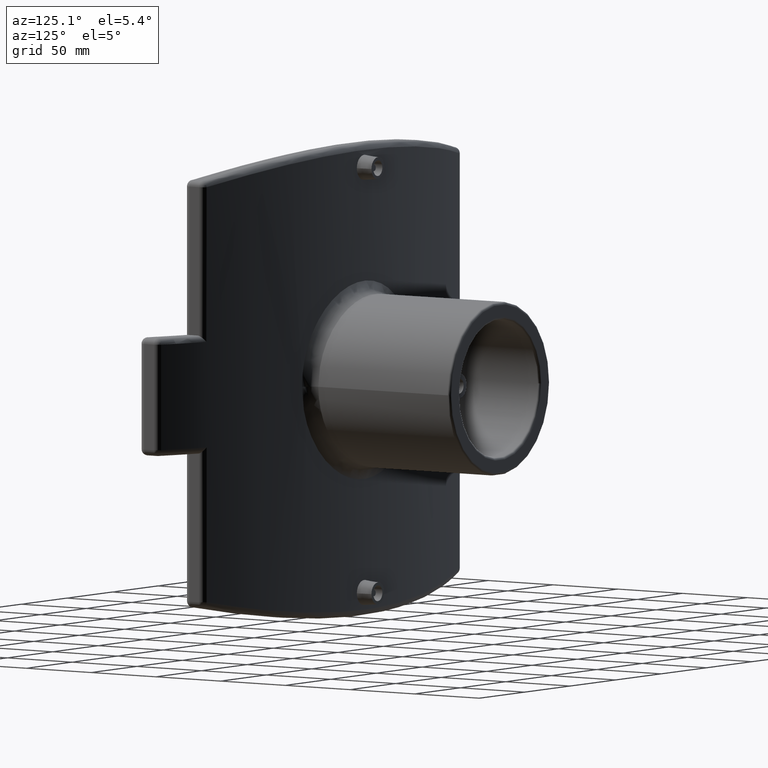
[diagram: clean part render]
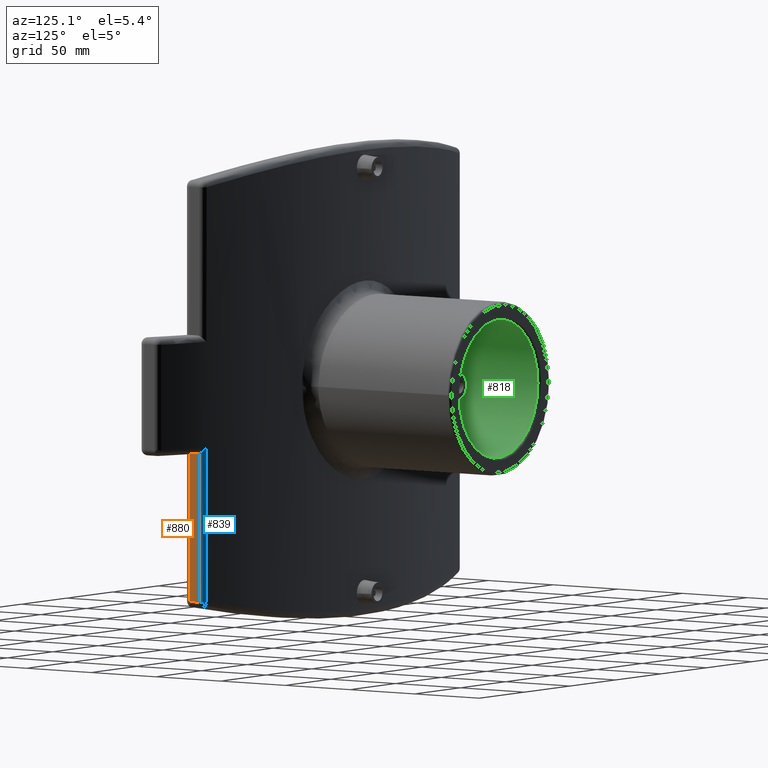
[diagram: same view with three faces highlighted in distinct colors, each labeled with its STEP entity id]
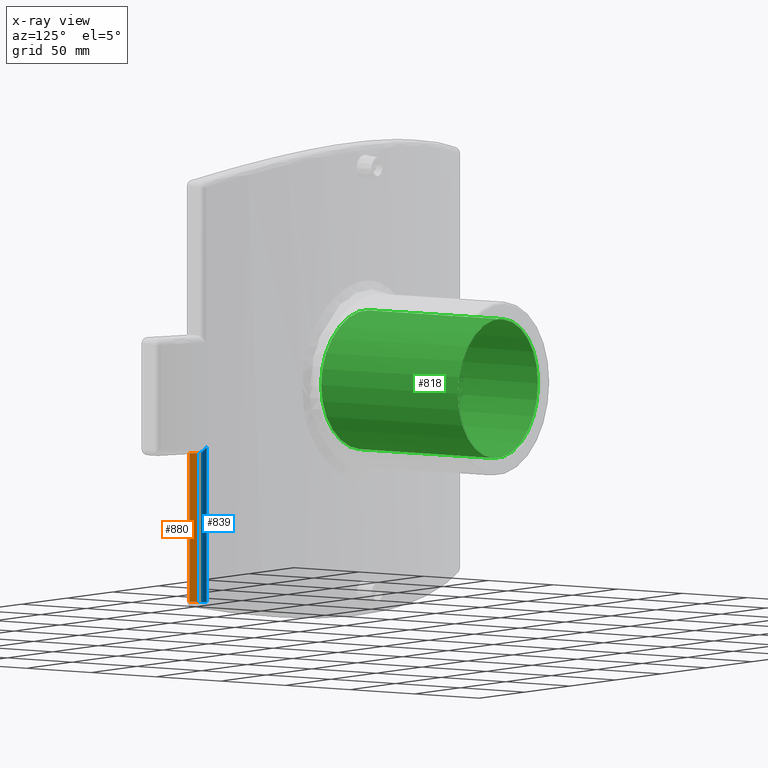
[diagram: x-ray of the same camera — body ghosted, the three highlighted faces saturated]
A machine part, auxiliary view with three faces highlighted in distinct colors.
The next image is the same camera in x-ray (body ghosted, the three faces saturated) — at least one of them is partly hidden behind the body in this view.
Their STEP definitions:

[orange] entity #880 — the highlighted planar face has unit normal (1, 0, 0).
#33=LINE('',#1778,#63);
#54=LINE('',#2195,#84);
#55=LINE('',#2198,#85);
#58=LINE('',#2203,#88);
#63=VECTOR('',#1104,94.4951362688339);
#84=VECTOR('',#1259,94.2576130740143);
#85=VECTOR('',#1264,7.43788437451492);
#88=VECTOR('',#1271,5.99159146866569);
#114=B_SPLINE_CURVE_WITH_KNOTS('',3,(#2186,#2187,#2188,#2189,#2190,#2191),
 .UNSPECIFIED.,.F.,.F.,(4,2,4),(-0.611718196703903,-0.531256665760459,-0.473772795786302),
 .UNSPECIFIED.);
#154=PLANE('',#1006);
#243=FACE_OUTER_BOUND('',#332,.T.);
#332=EDGE_LOOP('',(#800,#801,#802,#803,#804));
#429=VERTEX_POINT('',#1773);
#430=VERTEX_POINT('',#1777);
#431=VERTEX_POINT('',#1792);
#466=VERTEX_POINT('',#2184);
#467=VERTEX_POINT('',#2194);
#503=EDGE_CURVE('',#430,#429,#33,.T.);
#574=EDGE_CURVE('',#466,#430,#114,.T.);
#576=EDGE_CURVE('',#431,#467,#54,.T.);
#578=EDGE_CURVE('',#429,#431,#55,.T.);
#581=EDGE_CURVE('',#466,#467,#58,.T.);
#800=ORIENTED_EDGE('',*,*,#503,.F.);
#801=ORIENTED_EDGE('',*,*,#574,.F.);
#802=ORIENTED_EDGE('',*,*,#581,.T.);
#803=ORIENTED_EDGE('',*,*,#576,.F.);
#804=ORIENTED_EDGE('',*,*,#578,.F.);
#880=ADVANCED_FACE('',(#243),#154,.T.);
#1006=AXIS2_PLACEMENT_3D('',#2210,#1284,#1285);
#1104=DIRECTION('',(0.,0.,-1.));
#1259=DIRECTION('',(0.,0.,1.));
#1264=DIRECTION('',(0.,-1.,0.));
#1271=DIRECTION('',(0.,-1.,0.));
#1284=DIRECTION('center_axis',(1.,0.,0.));
#1285=DIRECTION('ref_axis',(0.,1.,0.));
#1773=CARTESIAN_POINT('',(141.750000000004,387.228533943457,-131.757613074014));
#1777=CARTESIAN_POINT('',(141.750000000004,387.228533943457,-37.2624768051804));
#1778=CARTESIAN_POINT('',(141.750000000004,387.228533943457,0.));
#1792=CARTESIAN_POINT('',(141.750000000004,379.790649568942,-131.757613074014));
#2184=CARTESIAN_POINT('',(141.750000000004,385.782241037608,-37.5));
#2186=CARTESIAN_POINT('Ctrl Pts',(141.750000000004,385.782241037608,-37.5));
#2187=CARTESIAN_POINT('Ctrl Pts',(141.750000000004,386.050446140753,-37.5));
#2188=CARTESIAN_POINT('Ctrl Pts',(141.750000000004,386.343547032284,-37.4746962943939));
#2189=CARTESIAN_POINT('Ctrl Pts',(141.750000000004,386.836318140981,-37.3806551270212));
#2190=CARTESIAN_POINT('Ctrl Pts',(141.750000000004,387.038891925898,-37.3267466109439));
#2191=CARTESIAN_POINT('Ctrl Pts',(141.750000000004,387.228533943457,-37.2624768051804));
#2194=CARTESIAN_POINT('',(141.750000000004,379.790649568942,-37.5));
#2195=CARTESIAN_POINT('',(141.750000000004,379.790649568942,0.));
#2198=CARTESIAN_POINT('',(141.750000000004,0.,-131.757613074014));
#2203=CARTESIAN_POINT('',(141.750000000004,374.772601595261,-37.5));
#2210=CARTESIAN_POINT('Origin',(141.750000000004,374.041358007372,0.));

[blue] entity #839 — the highlighted cylindrical surface (edge-blend (fillet) strip) has radius 4 mm, axis along (0, 0, 1).
#30=LINE('',#1563,#60);
#33=LINE('',#1778,#63);
#60=VECTOR('',#1035,98.2576130740143);
#63=VECTOR('',#1104,94.4951362688339);
#103=B_SPLINE_CURVE_WITH_KNOTS('',3,(#1779,#1780,#1781,#1782,#1783,#1784,
#1785,#1786,#1787,#1788,#1789,#1790),.UNSPECIFIED.,.F.,.F.,(4,2,2,2,2,4),
(-0.00126452852160072,0.,0.17925656040126,0.350104493650061,0.523411316612755,
0.624178032528681),.UNSPECIFIED.);
#124=CYLINDRICAL_SURFACE('',#928,4.);
#202=FACE_OUTER_BOUND('',#289,.T.);
#289=EDGE_LOOP('',(#638,#639,#640,#641));
#354=CIRCLE('',#926,4.);
#406=VERTEX_POINT('',#1560);
#407=VERTEX_POINT('',#1562);
#429=VERTEX_POINT('',#1773);
#430=VERTEX_POINT('',#1777);
#478=EDGE_CURVE('',#407,#406,#30,.T.);
#501=EDGE_CURVE('',#429,#407,#354,.F.);
#503=EDGE_CURVE('',#430,#429,#33,.T.);
#504=EDGE_CURVE('',#406,#430,#103,.T.);
#638=ORIENTED_EDGE('',*,*,#503,.T.);
#639=ORIENTED_EDGE('',*,*,#501,.T.);
#640=ORIENTED_EDGE('',*,*,#478,.T.);
#641=ORIENTED_EDGE('',*,*,#504,.T.);
#839=ADVANCED_FACE('',(#202),#124,.T.);
#926=AXIS2_PLACEMENT_3D('',#1774,#1098,#1099);
#928=AXIS2_PLACEMENT_3D('',#1776,#1102,#1103);
#1035=DIRECTION('',(0.,0.,1.));
#1098=DIRECTION('center_axis',(0.,4.71351280314039E-15,-1.));
#1099=DIRECTION('ref_axis',(1.,0.,0.));
#1102=DIRECTION('center_axis',(0.,0.,1.));
#1103=DIRECTION('ref_axis',(0.81705512385995,0.57655955856633,0.));
#1104=DIRECTION('',(0.,0.,-1.));
#1560=CARTESIAN_POINT('',(139.09063260341,390.997181475753,-33.5));
#1562=CARTESIAN_POINT('',(139.09063260341,390.997181475753,-131.757613074014));
#1563=CARTESIAN_POINT('',(139.09063260341,390.997181475753,0.));
#1773=CARTESIAN_POINT('',(141.750000000004,387.228533943457,-131.757613074014));
#1774=CARTESIAN_POINT('Origin',(137.750000000004,387.228533943457,-131.757613074014));
#1776=CARTESIAN_POINT('Origin',(137.750000000004,387.228533943457,0.));
#1777=CARTESIAN_POINT('',(141.750000000004,387.228533943457,-37.2624768051804));
#1778=CARTESIAN_POINT('',(141.750000000004,387.228533943457,0.));
#1779=CARTESIAN_POINT('Ctrl Pts',(139.09063260341,390.997181475753,-33.5));
#1780=CARTESIAN_POINT('Ctrl Pts',(139.093447529066,390.996180113573,-33.5029732967895));
#1781=CARTESIAN_POINT('Ctrl Pts',(139.096261333653,390.995175597248,-33.5059465944272));
#1782=CARTESIAN_POINT('Ctrl Pts',(139.497792593818,390.851323223342,-33.930406856836));
#1783=CARTESIAN_POINT('Ctrl Pts',(139.876345016678,390.64424868553,-34.3544120095419));
#1784=CARTESIAN_POINT('Ctrl Pts',(140.54357908225,390.121128128939,-35.1551058650056));
#1785=CARTESIAN_POINT('Ctrl Pts',(140.83982233076,389.807296336689,-35.5381256281206));
#1786=CARTESIAN_POINT('Ctrl Pts',(141.333533382297,389.061841850755,-36.2519018400816));
#1787=CARTESIAN_POINT('Ctrl Pts',(141.532757094742,388.623340530125,-36.5866461345682));
#1788=CARTESIAN_POINT('Ctrl Pts',(141.712969625684,387.845777665916,-37.0186394728309));
#1789=CARTESIAN_POINT('Ctrl Pts',(141.750000000004,387.542834550566,-37.1559601205853));
#1790=CARTESIAN_POINT('Ctrl Pts',(141.750000000004,387.228533943457,-37.2624768051804));

[green] entity #818 — the highlighted cylindrical surface (bore or boss wall) has radius 44 mm, axis along (0, -1, 0).
#94=B_SPLINE_CURVE_WITH_KNOTS('',3,(#1299,#1300,#1301,#1302,#1303,#1304,
#1305,#1306,#1307,#1308,#1309,#1310,#1311,#1312,#1313,#1314,#1315,#1316,
#1317,#1318,#1319,#1320,#1321,#1322,#1323,#1324,#1325,#1326,#1327,#1328,
#1329,#1330,#1331,#1332,#1333,#1334,#1335,#1336,#1337,#1338,#1339,#1340,
#1341,#1342,#1343,#1344,#1345,#1346,#1347,#1348,#1349,#1350,#1351,#1352,
#1353,#1354,#1355,#1356,#1357,#1358,#1359,#1360,#1361,#1362,#1363,#1364),
 .UNSPECIFIED.,.T.,.F.,(4,2,2,2,2,2,2,2,2,2,2,2,2,2,2,2,2,2,2,2,2,2,2,2,
2,2,2,2,2,2,2,2,4),(0.,0.829381838852933,1.65876367770587,2.4881455165588,
3.31752735541173,4.14690562286717,4.9762838903226,5.80566215777804,6.63504042523348,
7.46441869268891,8.29379696014435,9.12317522759978,9.95255349505522,10.7819353339082,
11.6113171727611,12.440699011614,13.270080850467,14.0994626893199,14.9288445281728,
15.7582263670258,16.5876082058787,17.4169864733341,18.2463647407896,19.075743008245,
19.9051212757004,20.7344995431559,21.5638778106113,22.3932560780667,23.2226343455222,
24.0520161843751,24.881398023228,25.710779862081,26.5401617009339),
 .UNSPECIFIED.);
#115=CYLINDRICAL_SURFACE('',#889,44.);
#158=FACE_BOUND('',#250,.T.);
#181=FACE_OUTER_BOUND('',#249,.T.);
#249=EDGE_LOOP('',(#586));
#250=EDGE_LOOP('',(#587));
#334=CIRCLE('',#885,44.);
#397=VERTEX_POINT('',#1290);
#400=VERTEX_POINT('',#1298);
#468=EDGE_CURVE('',#397,#397,#334,.T.);
#471=EDGE_CURVE('',#400,#400,#94,.T.);
#586=ORIENTED_EDGE('',*,*,#471,.F.);
#587=ORIENTED_EDGE('',*,*,#468,.F.);
#818=ADVANCED_FACE('',(#181,#158),#115,.F.);
#885=AXIS2_PLACEMENT_3D('',#1291,#1012,#1013);
#889=AXIS2_PLACEMENT_3D('',#1297,#1020,#1021);
#1012=DIRECTION('center_axis',(0.,-1.,0.));
#1013=DIRECTION('ref_axis',(1.,0.,0.));
#1020=DIRECTION('center_axis',(0.,-1.,0.));
#1021=DIRECTION('ref_axis',(1.,0.,0.));
#1290=CARTESIAN_POINT('',(-44.,518.4,-5.38844591624836E-15));
#1291=CARTESIAN_POINT('Origin',(0.,518.4,0.));
#1297=CARTESIAN_POINT('Origin',(0.,520.,0.));
#1298=CARTESIAN_POINT('',(44.,412.660877719224,0.));
#1299=CARTESIAN_POINT('Ctrl Pts',(44.,412.660877719224,0.));
#1300=CARTESIAN_POINT('Ctrl Pts',(44.,412.660877719224,-2.76460612950978));
#1301=CARTESIAN_POINT('Ctrl Pts',(43.7352436571786,412.689401844526,-5.622974104845));
#1302=CARTESIAN_POINT('Ctrl Pts',(42.6207317438865,412.805992153848,-11.3076346417609));
#1303=CARTESIAN_POINT('Ctrl Pts',(41.771221834736,412.893979344287,-14.133976983814));
#1304=CARTESIAN_POINT('Ctrl Pts',(39.525397380763,413.115015585023,-19.5537018339699));
#1305=CARTESIAN_POINT('Ctrl Pts',(38.12729507589,413.24803477934,-22.151440277066));
#1306=CARTESIAN_POINT('Ctrl Pts',(34.8971065830639,413.53333702481,-26.9549418168307));
#1307=CARTESIAN_POINT('Ctrl Pts',(33.0648135631946,413.685327752102,-29.1605831812216));
#1308=CARTESIAN_POINT('Ctrl Pts',(29.1605915872163,413.97885472402,-33.0648051571999));
#1309=CARTESIAN_POINT('Ctrl Pts',(26.9549540982225,414.130678802285,-34.8970972721342));
#1310=CARTESIAN_POINT('Ctrl Pts',(22.1514500099134,414.415373674925,-38.1272895830011));
#1311=CARTESIAN_POINT('Ctrl Pts',(19.553705114797,414.547956358941,-39.5253961428259));
#1312=CARTESIAN_POINT('Ctrl Pts',(14.1339679114485,414.768111667042,-41.7712254725695));
#1313=CARTESIAN_POINT('Ctrl Pts',(11.3076197552048,414.855661578738,-42.620735730119));
#1314=CARTESIAN_POINT('Ctrl Pts',(5.62295774811334,414.971643072901,-43.7352457963749));
#1315=CARTESIAN_POINT('Ctrl Pts',(2.76459422485146,415.,-44.));
#1316=CARTESIAN_POINT('Ctrl Pts',(-2.76459422485145,415.,-44.));
#1317=CARTESIAN_POINT('Ctrl Pts',(-5.62295774811333,414.971643072901,-43.7352457963749));
#1318=CARTESIAN_POINT('Ctrl Pts',(-11.3076197552047,414.855661578738,-42.620735730119));
#1319=CARTESIAN_POINT('Ctrl Pts',(-14.1339679114485,414.768111667042,-41.7712254725695));
#1320=CARTESIAN_POINT('Ctrl Pts',(-19.553705114797,414.547956358941,-39.5253961428259));
#1321=CARTESIAN_POINT('Ctrl Pts',(-22.1514500099134,414.415373674925,-38.1272895830011));
#1322=CARTESIAN_POINT('Ctrl Pts',(-26.9549540982225,414.130678802285,-34.8970972721342));
#1323=CARTESIAN_POINT('Ctrl Pts',(-29.1605915872162,413.97885472402,-33.0648051571999));
#1324=CARTESIAN_POINT('Ctrl Pts',(-33.0648135631946,413.685327752102,-29.1605831812216));
#1325=CARTESIAN_POINT('Ctrl Pts',(-34.8971065830639,413.53333702481,-26.9549418168307));
#1326=CARTESIAN_POINT('Ctrl Pts',(-38.12729507589,413.24803477934,-22.151440277066));
#1327=CARTESIAN_POINT('Ctrl Pts',(-39.525397380763,413.115015585023,-19.5537018339699));
#1328=CARTESIAN_POINT('Ctrl Pts',(-41.771221834736,412.893979344287,-14.133976983814));
#1329=CARTESIAN_POINT('Ctrl Pts',(-42.6207317438865,412.805992153848,-11.3076346417609));
#1330=CARTESIAN_POINT('Ctrl Pts',(-43.7352436571786,412.689401844526,-5.622974104845));
#1331=CARTESIAN_POINT('Ctrl Pts',(-44.,412.660877719224,-2.76460612950978));
#1332=CARTESIAN_POINT('Ctrl Pts',(-44.,412.660877719224,2.76460612950978));
#1333=CARTESIAN_POINT('Ctrl Pts',(-43.7352436571786,412.689401844526,5.622974104845));
#1334=CARTESIAN_POINT('Ctrl Pts',(-42.6207317438865,412.805992153848,11.3076346417609));
#1335=CARTESIAN_POINT('Ctrl Pts',(-41.771221834736,412.893979344287,14.133976983814));
#1336=CARTESIAN_POINT('Ctrl Pts',(-39.525397380763,413.115015585023,19.5537018339699));
#1337=CARTESIAN_POINT('Ctrl Pts',(-38.12729507589,413.24803477934,22.151440277066));
#1338=CARTESIAN_POINT('Ctrl Pts',(-34.8971065830639,413.53333702481,26.9549418168307));
#1339=CARTESIAN_POINT('Ctrl Pts',(-33.0648135631946,413.685327752102,29.1605831812216));
#1340=CARTESIAN_POINT('Ctrl Pts',(-29.1605915872163,413.97885472402,33.0648051571999));
#1341=CARTESIAN_POINT('Ctrl Pts',(-26.9549540982225,414.130678802285,34.8970972721342));
#1342=CARTESIAN_POINT('Ctrl Pts',(-22.1514500099134,414.415373674925,38.1272895830011));
#1343=CARTESIAN_POINT('Ctrl Pts',(-19.553705114797,414.547956358941,39.5253961428259));
#1344=CARTESIAN_POINT('Ctrl Pts',(-14.1339679114485,414.768111667042,41.7712254725695));
#1345=CARTESIAN_POINT('Ctrl Pts',(-11.3076197552048,414.855661578738,42.620735730119));
#1346=CARTESIAN_POINT('Ctrl Pts',(-5.62295774811334,414.971643072901,43.7352457963749));
#1347=CARTESIAN_POINT('Ctrl Pts',(-2.76459422485146,415.,44.));
#1348=CARTESIAN_POINT('Ctrl Pts',(2.76459422485144,415.,44.));
#1349=CARTESIAN_POINT('Ctrl Pts',(5.62295774811333,414.971643072901,43.7352457963749));
#1350=CARTESIAN_POINT('Ctrl Pts',(11.3076197552047,414.855661578738,42.620735730119));
#1351=CARTESIAN_POINT('Ctrl Pts',(14.1339679114485,414.768111667042,41.7712254725695));
#1352=CARTESIAN_POINT('Ctrl Pts',(19.553705114797,414.547956358941,39.5253961428259));
#1353=CARTESIAN_POINT('Ctrl Pts',(22.1514500099134,414.415373674925,38.1272895830011));
#1354=CARTESIAN_POINT('Ctrl Pts',(26.9549540982225,414.130678802285,34.8970972721342));
#1355=CARTESIAN_POINT('Ctrl Pts',(29.1605915872162,413.97885472402,33.0648051571999));
#1356=CARTESIAN_POINT('Ctrl Pts',(33.0648135631946,413.685327752102,29.1605831812216));
#1357=CARTESIAN_POINT('Ctrl Pts',(34.8971065830638,413.53333702481,26.9549418168307));
#1358=CARTESIAN_POINT('Ctrl Pts',(38.12729507589,413.24803477934,22.151440277066));
#1359=CARTESIAN_POINT('Ctrl Pts',(39.525397380763,413.115015585024,19.5537018339699));
#1360=CARTESIAN_POINT('Ctrl Pts',(41.771221834736,412.893979344287,14.133976983814));
#1361=CARTESIAN_POINT('Ctrl Pts',(42.6207317438865,412.805992153848,11.3076346417609));
#1362=CARTESIAN_POINT('Ctrl Pts',(43.7352436571786,412.689401844526,5.62297410484499));
#1363=CARTESIAN_POINT('Ctrl Pts',(44.,412.660877719224,2.76460612950977));
#1364=CARTESIAN_POINT('Ctrl Pts',(44.,412.660877719224,5.55111512312578E-16));